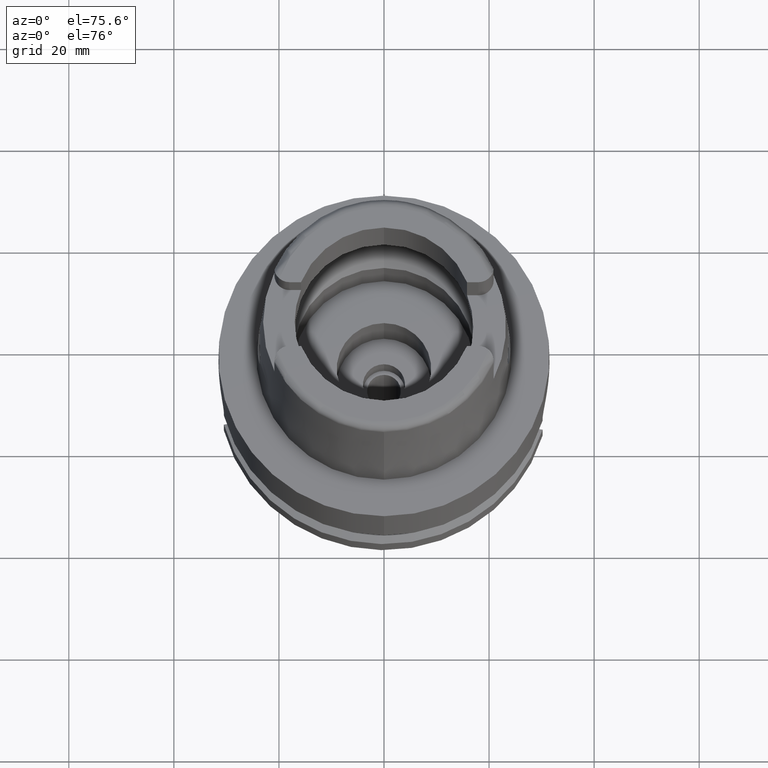
[diagram: clean part render]
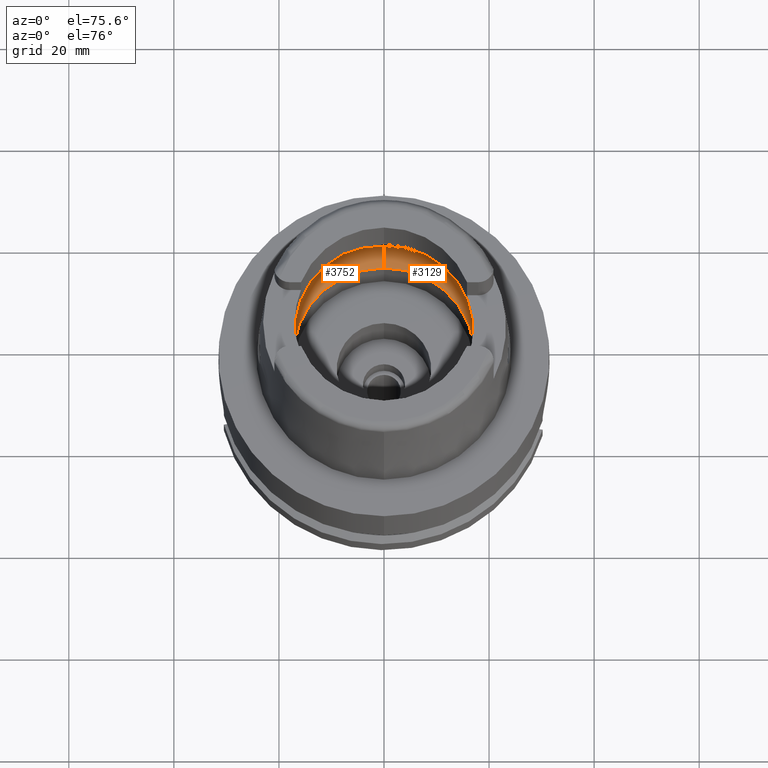
[diagram: same view with one multi-face feature highlighted, each face labeled with its STEP entity id]
A machine part, auxiliary view. The highlighted faces form ONE feature: a constant-radius fillet chain: 2 tangent blend faces with common blend radius 8 mm. The faces share edges in the B-rep.
Their STEP definitions:
[1] entity #3129 (Torus):
#166 = CARTESIAN_POINT ( 'NONE',  ( 19.88332301270218849, -2.178372191595286722, 5.921392438207989883 ) ) ;
#255 = AXIS2_PLACEMENT_3D ( 'NONE', #1515, #4586, #2345 ) ;
#263 = CARTESIAN_POINT ( 'NONE',  ( 19.91448735469504427, 1.610406046188481932, 5.612875421313382240 ) ) ;
#369 = VERTEX_POINT ( 'NONE', #2231 ) ;
#585 = CARTESIAN_POINT ( 'NONE',  ( 19.92840411800285594, -1.244366584479167814, 5.462313247185328180 ) ) ;
#715 = CARTESIAN_POINT ( 'NONE',  ( 0.0000000000000000000, 20.00000000000000000, 6.186348233825000875 ) ) ;
#716 = CARTESIAN_POINT ( 'NONE',  ( 19.90654626797081761, 1.769934426146181128, 5.691841251131339874 ) ) ;
#851 = VERTEX_POINT ( 'NONE', #1286 ) ;
#902 = DIRECTION ( 'NONE',  ( 0.0000000000000000000, 0.6562500000000006661, -0.7545435292281016393 ) ) ;
#959 = CARTESIAN_POINT ( 'NONE',  ( 19.92705981527248937, -1.286926606873724177, 5.477698152406411225 ) ) ;
#1095 = CARTESIAN_POINT ( 'NONE',  ( 19.92208736014775994, 1.429898011590186924, 5.533076699460339754 ) ) ;
#1123 = CARTESIAN_POINT ( 'NONE',  ( 19.84575864665999845, 2.479085262491000030, 6.186348233825000875 ) ) ;
#1133 = VERTEX_POINT ( 'NONE', #4155 ) ;
#1186 = VERTEX_POINT ( 'NONE', #715 ) ;
#1274 = CARTESIAN_POINT ( 'NONE',  ( 0.0000000000000000000, 0.0000000000000000000, 0.1500000000000999700 ) ) ;
#1286 = CARTESIAN_POINT ( 'NONE',  ( 19.94501428475999916, 0.0000000000000000000, 5.250000000000000000 ) ) ;
#1374 = CARTESIAN_POINT ( 'NONE',  ( 19.84575864665999845, -2.479085262491000030, 6.186348233825000875 ) ) ;
#1378 = CARTESIAN_POINT ( 'NONE',  ( 19.93292500493674524, -1.081634238850528451, 5.408973163817647034 ) ) ;
#1407 = ORIENTED_EDGE ( 'NONE', *, *, #3032, .F. ) ;
#1410 = CARTESIAN_POINT ( 'NONE',  ( 19.93856666885426776, -0.8185636124059638696, 5.338679045133562617 ) ) ;
#1487 = CARTESIAN_POINT ( 'NONE',  ( 19.93655178888372248, -0.9261198900591437466, 5.364559530321087344 ) ) ;
#1515 = CARTESIAN_POINT ( 'NONE',  ( 0.0000000000000000000, 0.0000000000000000000, 6.186348233825000875 ) ) ;
#1598 = CARTESIAN_POINT ( 'NONE',  ( 19.93856757259323231, 0.9457801821284733679, 5.348172806034195759 ) ) ;
#1666 = CIRCLE ( 'NONE', #2385, 7.999999999999992895 ) ;
#1703 = EDGE_CURVE ( 'NONE', #1133, #3063, #1875, .T. ) ;
#1760 = ORIENTED_EDGE ( 'NONE', *, *, #2156, .T. ) ;
#1875 = CIRCLE ( 'NONE', #3453, 17.25000000000000000 ) ;
#1898 = ORIENTED_EDGE ( 'NONE', *, *, #3967, .F. ) ;
#2035 = DIRECTION ( 'NONE',  ( 0.0000000000000000000, 0.0000000000000000000, -1.000000000000000000 ) ) ;
#2041 = AXIS2_PLACEMENT_3D ( 'NONE', #5469, #3325, #5116 ) ;
#2102 = ORIENTED_EDGE ( 'NONE', *, *, #3882, .F. ) ;
#2156 = EDGE_CURVE ( 'NONE', #1133, #3901, #1666, .T. ) ;
#2194 = ORIENTED_EDGE ( 'NONE', *, *, #2875, .F. ) ;
#2231 = CARTESIAN_POINT ( 'NONE',  ( 19.84575864665999845, 2.479085262491000030, 6.186348233825000875 ) ) ;
#2270 = VERTEX_POINT ( 'NONE', #1374 ) ;
#2288 = CARTESIAN_POINT ( 'NONE',  ( 19.92591691872320681, -1.321755966737424792, 5.490652197696729075 ) ) ;
#2345 = DIRECTION ( 'NONE',  ( 0.0000000000000000000, 1.000000000000000000, 0.0000000000000000000 ) ) ;
#2354 = CARTESIAN_POINT ( 'NONE',  ( 19.88059055109615159, 2.158396495719459462, 5.925189677144884648 ) ) ;
#2385 = AXIS2_PLACEMENT_3D ( 'NONE', #3628, #3201, #4921 ) ;
#2560 = CARTESIAN_POINT ( 'NONE',  ( 0.0000000000000000000, 17.25000000000000000, 0.1500000000000999700 ) ) ;
#2724 = CARTESIAN_POINT ( 'NONE',  ( 19.91820185418519884, 1.528668694906667236, 5.574772838317966439 ) ) ;
#2787 = AXIS2_PLACEMENT_3D ( 'NONE', #5171, #3713, #902 ) ;
#2794 = B_SPLINE_CURVE_WITH_KNOTS ( 'NONE', 3,
 ( #1123, #4125, #2354, #5378, #716, #263, #2724, #1095, #4103, #5481, #5562, #5454, #1598, #4677, #3311 ),
 .UNSPECIFIED., .F., .F.,
 ( 4, 2, 2, 1, 1, 1, 2, 2, 4 ),
 ( 0.0000000000000000000, 0.2500000000000033862, 0.3750000000000049405, 0.4375000000000056621, 0.4687500000000057176, 0.4843750000000056621, 0.4921875000000054956, 0.5000000000000053291, 1.000000000000000000 ),
 .UNSPECIFIED. ) ;
#2865 = DIRECTION ( 'NONE',  ( 0.0000000000000000000, 0.0000000000000000000, 1.000000000000000000 ) ) ;
#2875 = EDGE_CURVE ( 'NONE', #1186, #369, #4127, .T. ) ;
#2945 = AXIS2_PLACEMENT_3D ( 'NONE', #3412, #2035, #2997 ) ;
#2997 = DIRECTION ( 'NONE',  ( 0.9922879323327794543, -0.1239542631244973381, 0.0000000000000000000 ) ) ;
#3032 = EDGE_CURVE ( 'NONE', #2270, #3901, #5550, .T. ) ;
#3063 = VERTEX_POINT ( 'NONE', #2560 ) ;
#3082 = CARTESIAN_POINT ( 'NONE',  ( 19.93096049696546856, -1.157939335591919860, 5.432578789541300246 ) ) ;
#3113 = CARTESIAN_POINT ( 'NONE',  ( 19.92646951840612246, -1.305026090026948804, 5.484399317726082579 ) ) ;
#3129 = ADVANCED_FACE ( 'NONE', ( #3760 ), #4826, .F. ) ;
#3145 = CARTESIAN_POINT ( 'NONE',  ( 19.90996060949646207, -1.795819319521763990, 5.670329520825307057 ) ) ;
#3201 = DIRECTION ( 'NONE',  ( -1.000000000000000000, 0.0000000000000000000, 0.0000000000000000000 ) ) ;
#3311 = CARTESIAN_POINT ( 'NONE',  ( 19.94501428475999916, 0.0000000000000000000, 5.250000000000000000 ) ) ;
#3325 = DIRECTION ( 'NONE',  ( 0.0000000000000000000, 0.0000000000000000000, 1.000000000000000000 ) ) ;
#3402 = ORIENTED_EDGE ( 'NONE', *, *, #4857, .F. ) ;
#3412 = CARTESIAN_POINT ( 'NONE',  ( 0.0000000000000000000, 0.0000000000000000000, 6.186348233825000875 ) ) ;
#3453 = AXIS2_PLACEMENT_3D ( 'NONE', #1274, #2865, #5097 ) ;
#3507 = EDGE_LOOP ( 'NONE', ( #3402, #2194, #2102, #3606, #1760, #1407, #1898 ) ) ;
#3606 = ORIENTED_EDGE ( 'NONE', *, *, #1703, .F. ) ;
#3628 = CARTESIAN_POINT ( 'NONE',  ( 0.0000000000000000000, -12.00000000000000000, 6.186348233825000875 ) ) ;
#3713 = DIRECTION ( 'NONE',  ( 1.000000000000000000, 0.0000000000000000000, 0.0000000000000000000 ) ) ;
#3760 = FACE_OUTER_BOUND ( 'NONE', #3507, .T. ) ;
#3882 = EDGE_CURVE ( 'NONE', #3063, #1186, #3970, .T. ) ;
#3901 = VERTEX_POINT ( 'NONE', #4779 ) ;
#3936 = CARTESIAN_POINT ( 'NONE',  ( 19.94340238078356720, -0.4850176595367738930, 5.274610361541468784 ) ) ;
#3967 = EDGE_CURVE ( 'NONE', #851, #2270, #4655, .T. ) ;
#3970 = CIRCLE ( 'NONE', #2787, 7.999999999999992895 ) ;
#4103 = CARTESIAN_POINT ( 'NONE',  ( 19.92391809393505397, 1.379668374353000937, 5.512961660982391265 ) ) ;
#4125 = CARTESIAN_POINT ( 'NONE',  ( 19.86454016619522989, 2.328734038445912979, 6.053875015849456531 ) ) ;
#4127 = CIRCLE ( 'NONE', #255, 20.00000000000000000 ) ;
#4155 = CARTESIAN_POINT ( 'NONE',  ( 0.0000000000000000000, -17.25000000000000000, 0.1500000000000999700 ) ) ;
#4454 = CARTESIAN_POINT ( 'NONE',  ( 19.94501428476000271, -0.2480012822880987844, 5.249999999999999112 ) ) ;
#4586 = DIRECTION ( 'NONE',  ( 0.0000000000000000000, 0.0000000000000000000, -1.000000000000000000 ) ) ;
#4655 = B_SPLINE_CURVE_WITH_KNOTS ( 'NONE', 3,
 ( #5313, #4454, #3936, #1410, #1487, #1378, #3082, #585, #959, #3113, #5283, #2288, #3145, #166, #5253 ),
 .UNSPECIFIED., .F., .F.,
 ( 4, 2, 2, 1, 1, 1, 2, 2, 4 ),
 ( 0.0000000000000000000, 0.2499999999999987788, 0.3749999999999982792, 0.4374999999999980571, 0.4687499999999978906, 0.4843749999999975020, 0.4921874999999975575, 0.4999999999999975575, 1.000000000000000000 ),
 .UNSPECIFIED. ) ;
#4677 = CARTESIAN_POINT ( 'NONE',  ( 19.94501428475999560, 0.4959095983523816309, 5.249999999999999112 ) ) ;
#4779 = CARTESIAN_POINT ( 'NONE',  ( 0.0000000000000000000, -20.00000000000000000, 6.186348233825000875 ) ) ;
#4826 = TOROIDAL_SURFACE ( 'NONE', #2041, 12.00000000000000000, 8.000000000000000000 ) ;
#4857 = EDGE_CURVE ( 'NONE', #369, #851, #2794, .T. ) ;
#4921 = DIRECTION ( 'NONE',  ( 0.0000000000000000000, -0.6562500000000006661, -0.7545435292281016393 ) ) ;
#5097 = DIRECTION ( 'NONE',  ( 0.0000000000000000000, -1.000000000000000000, 0.0000000000000000000 ) ) ;
#5116 = DIRECTION ( 'NONE',  ( 0.0000000000000000000, 1.000000000000000000, 0.0000000000000000000 ) ) ;
#5171 = CARTESIAN_POINT ( 'NONE',  ( 0.0000000000000000000, 12.00000000000000000, 6.186348233825000875 ) ) ;
#5253 = CARTESIAN_POINT ( 'NONE',  ( 19.84575864665999845, -2.479085262491000030, 6.186348233825000875 ) ) ;
#5283 = CARTESIAN_POINT ( 'NONE',  ( 19.92607283891191727, -1.317061137141596561, 5.488890315884850324 ) ) ;
#5313 = CARTESIAN_POINT ( 'NONE',  ( 19.94501428475999916, 0.0000000000000000000, 5.250000000000000000 ) ) ;
#5378 = CARTESIAN_POINT ( 'NONE',  ( 19.90056942649606597, 1.871016442818389525, 5.748161141865908874 ) ) ;
#5454 = CARTESIAN_POINT ( 'NONE',  ( 19.92547268850448816, 1.334865291962832767, 5.495620507227335416 ) ) ;
#5469 = CARTESIAN_POINT ( 'NONE',  ( 0.0000000000000000000, 0.0000000000000000000, 6.186348233825000875 ) ) ;
#5481 = CARTESIAN_POINT ( 'NONE',  ( 19.92467869001661995, 1.357961439187409525, 5.504502721927527986 ) ) ;
#5550 = CIRCLE ( 'NONE', #2945, 20.00000000000001421 ) ;
#5562 = CARTESIAN_POINT ( 'NONE',  ( 19.92518041982365418, 1.343450277255565872, 5.498899909475031045 ) ) ;
[2] entity #3752 (Torus):
#75 = DIRECTION ( 'NONE',  ( 0.0000000000000000000, 0.0000000000000000000, 1.000000000000000000 ) ) ;
#149 = EDGE_CURVE ( 'NONE', #3063, #1133, #1070, .T. ) ;
#204 = EDGE_CURVE ( 'NONE', #3901, #2165, #2390, .T. ) ;
#583 = DIRECTION ( 'NONE',  ( 0.0000000000000000000, 0.0000000000000000000, -1.000000000000000000 ) ) ;
#618 = B_SPLINE_CURVE_WITH_KNOTS ( 'NONE', 3,
 ( #2049, #1622, #2077, #1650, #5077, #3797, #5511, #5101, #2953, #1360, #5205, #3972, #4762, #3912, #1415 ),
 .UNSPECIFIED., .F., .F.,
 ( 4, 2, 2, 1, 1, 1, 2, 2, 4 ),
 ( 0.0000000000000000000, 0.2500000000000051070, 0.3750000000000077716, 0.4375000000000091038, 0.4687500000000098255, 0.4843750000000101030, 0.4921875000000099920, 0.5000000000000098810, 1.000000000000000000 ),
 .UNSPECIFIED. ) ;
#698 = CARTESIAN_POINT ( 'NONE',  ( -19.88332346670492257, 2.178368557158611996, 5.921389235935947681 ) ) ;
#715 = CARTESIAN_POINT ( 'NONE',  ( 0.0000000000000000000, 20.00000000000000000, 6.186348233825000875 ) ) ;
#723 = CARTESIAN_POINT ( 'NONE',  ( -19.92706179647761999, 1.286754988679454703, 5.477635449958629721 ) ) ;
#902 = DIRECTION ( 'NONE',  ( 0.0000000000000000000, 0.6562500000000006661, -0.7545435292281016393 ) ) ;
#912 = AXIS2_PLACEMENT_3D ( 'NONE', #3608, #3663, #1092 ) ;
#915 = CARTESIAN_POINT ( 'NONE',  ( 0.0000000000000000000, 0.0000000000000000000, 6.186348233825000875 ) ) ;
#1070 = CIRCLE ( 'NONE', #2839, 17.25000000000000000 ) ;
#1080 = EDGE_CURVE ( 'NONE', #2359, #1186, #1771, .T. ) ;
#1092 = DIRECTION ( 'NONE',  ( 0.0000000000000000000, 1.000000000000000000, 0.0000000000000000000 ) ) ;
#1131 = CARTESIAN_POINT ( 'NONE',  ( -19.94501428476000271, 0.2479290550754577327, 5.249999999999999112 ) ) ;
#1133 = VERTEX_POINT ( 'NONE', #4155 ) ;
#1186 = VERTEX_POINT ( 'NONE', #715 ) ;
#1360 = CARTESIAN_POINT ( 'NONE',  ( -19.92467615132159864, -1.358120919786871328, 5.504564686247708671 ) ) ;
#1408 = CARTESIAN_POINT ( 'NONE',  ( 0.0000000000000000000, 0.0000000000000000000, 6.186348233825000875 ) ) ;
#1415 = CARTESIAN_POINT ( 'NONE',  ( -19.94501428475999916, 0.0000000000000000000, 5.250000000000000000 ) ) ;
#1622 = CARTESIAN_POINT ( 'NONE',  ( -19.86453968564131500, -2.328737885376345407, 6.053878405347992597 ) ) ;
#1625 = ORIENTED_EDGE ( 'NONE', *, *, #3882, .T. ) ;
#1646 = CARTESIAN_POINT ( 'NONE',  ( 0.0000000000000000000, 0.0000000000000000000, 0.1500000000000999700 ) ) ;
#1650 = CARTESIAN_POINT ( 'NONE',  ( -19.90056784349247820, -1.871074272730828048, 5.748194928871746434 ) ) ;
#1666 = CIRCLE ( 'NONE', #2385, 7.999999999999992895 ) ;
#1771 = CIRCLE ( 'NONE', #4045, 20.00000000000001421 ) ;
#1921 = CARTESIAN_POINT ( 'NONE',  ( -19.92840595086943978, 1.244192535819847123, 5.462252019519766577 ) ) ;
#2032 = ORIENTED_EDGE ( 'NONE', *, *, #4984, .F. ) ;
#2049 = CARTESIAN_POINT ( 'NONE',  ( -19.84575864665999845, -2.479085262491000030, 6.186348233825000875 ) ) ;
#2077 = CARTESIAN_POINT ( 'NONE',  ( -19.88058961472209774, -2.158414018199903417, 5.925204145833316893 ) ) ;
#2156 = EDGE_CURVE ( 'NONE', #1133, #3901, #1666, .T. ) ;
#2165 = VERTEX_POINT ( 'NONE', #4095 ) ;
#2300 = DIRECTION ( 'NONE',  ( -0.9922879323327794543, 0.1239542631244973381, 0.0000000000000000000 ) ) ;
#2339 = CARTESIAN_POINT ( 'NONE',  ( -19.84575864665999845, 2.479085262489999941, 6.186348233825000875 ) ) ;
#2359 = VERTEX_POINT ( 'NONE', #2652 ) ;
#2363 = CARTESIAN_POINT ( 'NONE',  ( -19.94340255865082767, 0.4848947565524748260, 5.274596189388979894 ) ) ;
#2385 = AXIS2_PLACEMENT_3D ( 'NONE', #3628, #3201, #4921 ) ;
#2390 = CIRCLE ( 'NONE', #3290, 20.00000000000000000 ) ;
#2417 = CARTESIAN_POINT ( 'NONE',  ( -19.92607492902601862, 1.316891584251023373, 5.488826718528810211 ) ) ;
#2447 = CARTESIAN_POINT ( 'NONE',  ( -19.93856738032333453, 0.8183990517498546113, 5.338642722792990014 ) ) ;
#2516 = EDGE_LOOP ( 'NONE', ( #4460, #4575, #3992, #1625, #4550, #3322, #2032 ) ) ;
#2560 = CARTESIAN_POINT ( 'NONE',  ( 0.0000000000000000000, 17.25000000000000000, 0.1500000000000999700 ) ) ;
#2612 = DIRECTION ( 'NONE',  ( 0.0000000000000000000, 0.0000000000000000000, -1.000000000000000000 ) ) ;
#2652 = CARTESIAN_POINT ( 'NONE',  ( -19.84575864665999845, 2.479085262489999941, 6.186348233825000875 ) ) ;
#2787 = AXIS2_PLACEMENT_3D ( 'NONE', #5171, #3713, #902 ) ;
#2818 = CARTESIAN_POINT ( 'NONE',  ( -19.93292633894125032, 1.081457122334412047, 5.408919853931180910 ) ) ;
#2839 = AXIS2_PLACEMENT_3D ( 'NONE', #1646, #75, #3767 ) ;
#2953 = CARTESIAN_POINT ( 'NONE',  ( -19.92391559123418787, -1.379822842001579009, 5.513022806674898746 ) ) ;
#3063 = VERTEX_POINT ( 'NONE', #2560 ) ;
#3101 = B_SPLINE_CURVE_WITH_KNOTS ( 'NONE', 3,
 ( #5360, #1131, #2363, #2447, #3295, #2818, #4995, #1921, #723, #4611, #2417, #5027, #4555, #698, #2339 ),
 .UNSPECIFIED., .F., .F.,
 ( 4, 2, 2, 1, 1, 1, 2, 2, 4 ),
 ( 0.0000000000000000000, 0.2500000000000002220, 0.3750000000000004441, 0.4375000000000003331, 0.4687500000000000555, 0.4843750000000001110, 0.4921875000000000555, 0.5000000000000000000, 1.000000000000000000 ),
 .UNSPECIFIED. ) ;
#3201 = DIRECTION ( 'NONE',  ( -1.000000000000000000, 0.0000000000000000000, 0.0000000000000000000 ) ) ;
#3290 = AXIS2_PLACEMENT_3D ( 'NONE', #1408, #583, #4837 ) ;
#3295 = CARTESIAN_POINT ( 'NONE',  ( -19.93655272268687284, 0.9259470818481616572, 5.364515645286472179 ) ) ;
#3322 = ORIENTED_EDGE ( 'NONE', *, *, #4280, .F. ) ;
#3608 = CARTESIAN_POINT ( 'NONE',  ( 0.0000000000000000000, 0.0000000000000000000, 6.186348233825000875 ) ) ;
#3628 = CARTESIAN_POINT ( 'NONE',  ( 0.0000000000000000000, -12.00000000000000000, 6.186348233825000875 ) ) ;
#3663 = DIRECTION ( 'NONE',  ( 0.0000000000000000000, 0.0000000000000000000, 1.000000000000000000 ) ) ;
#3713 = DIRECTION ( 'NONE',  ( 1.000000000000000000, 0.0000000000000000000, 0.0000000000000000000 ) ) ;
#3752 = ADVANCED_FACE ( 'NONE', ( #4100 ), #5311, .F. ) ;
#3767 = DIRECTION ( 'NONE',  ( 0.0000000000000000000, 1.000000000000000000, 0.0000000000000000000 ) ) ;
#3797 = CARTESIAN_POINT ( 'NONE',  ( -19.91448525756728927, -1.610510976265786987, 5.612925495665686881 ) ) ;
#3882 = EDGE_CURVE ( 'NONE', #3063, #1186, #3970, .T. ) ;
#3901 = VERTEX_POINT ( 'NONE', #4779 ) ;
#3912 = CARTESIAN_POINT ( 'NONE',  ( -19.94501428475999560, -0.4960423020627297008, 5.249999999999995559 ) ) ;
#3970 = CIRCLE ( 'NONE', #2787, 7.999999999999992895 ) ;
#3972 = CARTESIAN_POINT ( 'NONE',  ( -19.92547007504345302, -1.335031240339097369, 5.495683724100088874 ) ) ;
#3992 = ORIENTED_EDGE ( 'NONE', *, *, #149, .F. ) ;
#4045 = AXIS2_PLACEMENT_3D ( 'NONE', #915, #2612, #2300 ) ;
#4095 = CARTESIAN_POINT ( 'NONE',  ( -19.84575864665999845, -2.479085262491000030, 6.186348233825000875 ) ) ;
#4100 = FACE_OUTER_BOUND ( 'NONE', #2516, .T. ) ;
#4155 = CARTESIAN_POINT ( 'NONE',  ( 0.0000000000000000000, -17.25000000000000000, 0.1500000000000999700 ) ) ;
#4166 = VERTEX_POINT ( 'NONE', #5163 ) ;
#4280 = EDGE_CURVE ( 'NONE', #4166, #2359, #3101, .T. ) ;
#4460 = ORIENTED_EDGE ( 'NONE', *, *, #204, .F. ) ;
#4550 = ORIENTED_EDGE ( 'NONE', *, *, #1080, .F. ) ;
#4555 = CARTESIAN_POINT ( 'NONE',  ( -19.90996177496825936, 1.795767083473500003, 5.670284047757667700 ) ) ;
#4575 = ORIENTED_EDGE ( 'NONE', *, *, #2156, .F. ) ;
#4611 = CARTESIAN_POINT ( 'NONE',  ( -19.92647156474819425, 1.304855687908918371, 5.484336066840278079 ) ) ;
#4762 = CARTESIAN_POINT ( 'NONE',  ( -19.93856671042052398, -0.9459665778997381480, 5.348222674928019060 ) ) ;
#4779 = CARTESIAN_POINT ( 'NONE',  ( 0.0000000000000000000, -20.00000000000000000, 6.186348233825000875 ) ) ;
#4837 = DIRECTION ( 'NONE',  ( 0.0000000000000000000, -1.000000000000000000, 0.0000000000000000000 ) ) ;
#4921 = DIRECTION ( 'NONE',  ( 0.0000000000000000000, -0.6562500000000006661, -0.7545435292281016393 ) ) ;
#4984 = EDGE_CURVE ( 'NONE', #2165, #4166, #618, .T. ) ;
#4995 = CARTESIAN_POINT ( 'NONE',  ( -19.93096204774570523, 1.157762075076217867, 5.432521242667223582 ) ) ;
#5027 = CARTESIAN_POINT ( 'NONE',  ( -19.92591906827002646, 1.321585501804108498, 5.490587994736724653 ) ) ;
#5077 = CARTESIAN_POINT ( 'NONE',  ( -19.90654447560747542, -1.770008974173177263, 5.691881888190377659 ) ) ;
#5101 = CARTESIAN_POINT ( 'NONE',  ( -19.92208494194046509, -1.430041077684033990, 5.533135808937241329 ) ) ;
#5163 = CARTESIAN_POINT ( 'NONE',  ( -19.94501428475999916, 0.0000000000000000000, 5.250000000000000000 ) ) ;
#5171 = CARTESIAN_POINT ( 'NONE',  ( 0.0000000000000000000, 12.00000000000000000, 6.186348233825000875 ) ) ;
#5205 = CARTESIAN_POINT ( 'NONE',  ( -19.92517785718085577, -1.343613127942956842, 5.498962406970089312 ) ) ;
#5311 = TOROIDAL_SURFACE ( 'NONE', #912, 12.00000000000000000, 8.000000000000000000 ) ;
#5360 = CARTESIAN_POINT ( 'NONE',  ( -19.94501428475999916, 0.0000000000000000000, 5.250000000000000000 ) ) ;
#5511 = CARTESIAN_POINT ( 'NONE',  ( -19.91819960699401193, -1.528790138807751164, 5.574827418276589341 ) ) ;